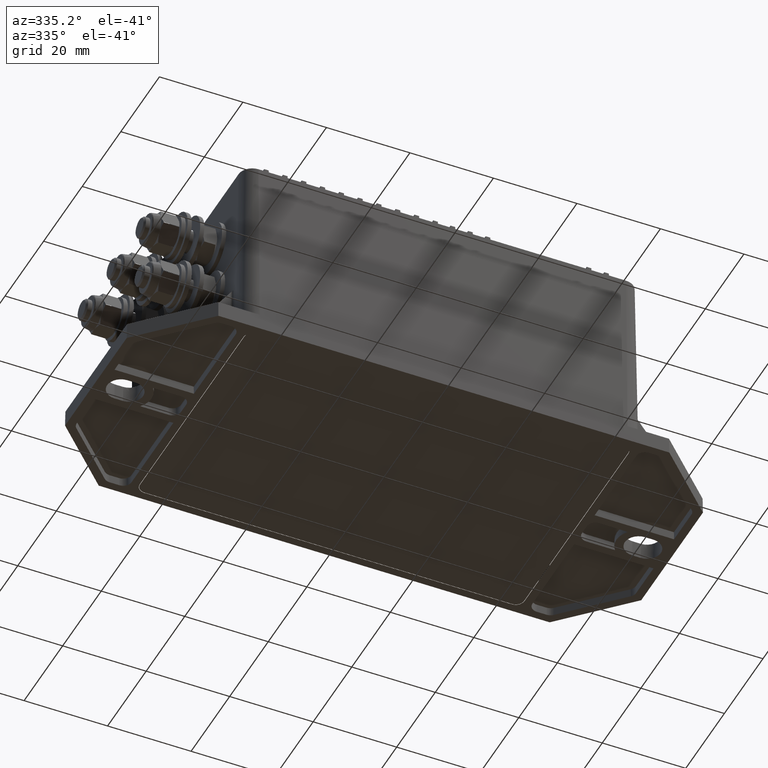
[diagram: clean part render]
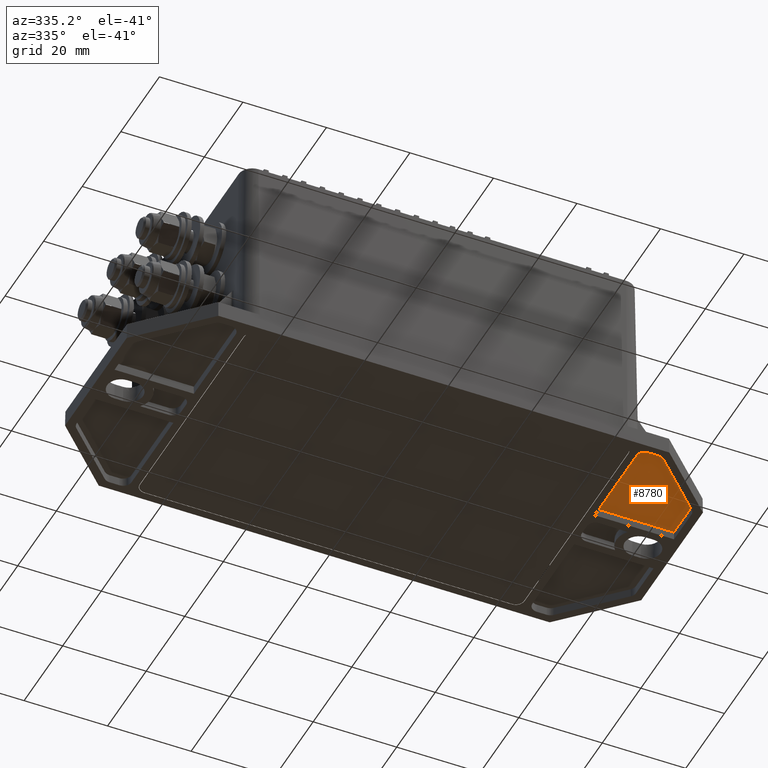
[diagram: same view with one face highlighted and labeled with its STEP entity id]
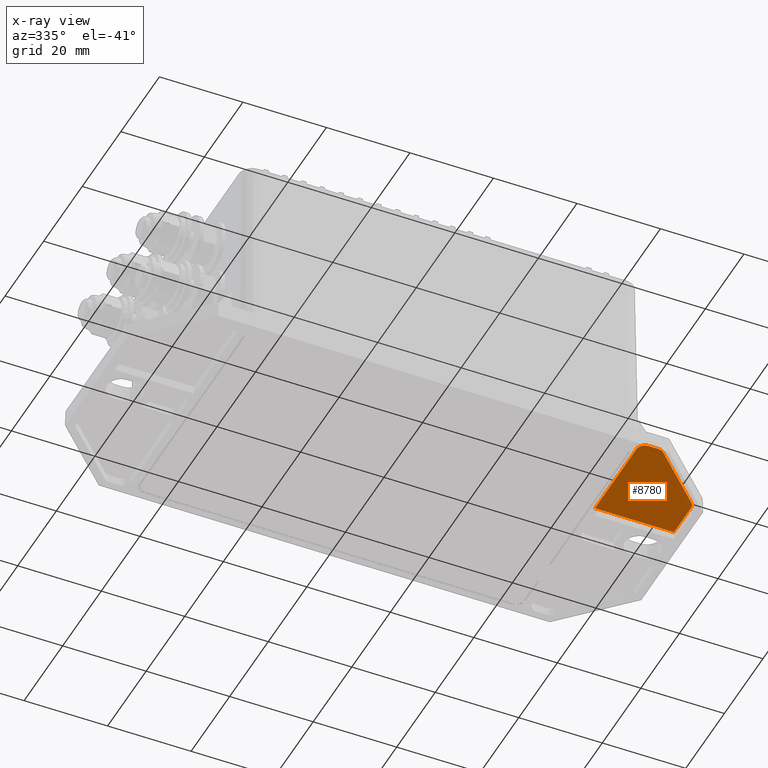
[diagram: x-ray of the same camera — body ghosted, the highlighted face saturated]
A machine part, auxiliary view. The second image highlights one B-rep face of the part: STEP entity #8780.
The next image is the same camera in x-ray: the body ghosted, the highlighted face saturated — about 0% of this face is hidden behind the body in this view.
In plain terms, the highlighted planar face has unit normal (0, 0, 1).
Its self-contained STEP definition (entity closure, byte-faithful):
#8485=CARTESIAN_POINT('',(48.034605473768657,-5.355035045656894,2.0));
#8486=VERTEX_POINT('',#8485);
#8501=CARTESIAN_POINT('',(66.96478521405578,-5.355035045656798,2.0));
#8502=VERTEX_POINT('',#8501);
#8509=CARTESIAN_POINT('',(48.034605473768657,-5.355035045656894,2.0));
#8510=DIRECTION('',(1.0,0.0,0.0));
#8511=VECTOR('',#8510,18.930179740287123);
#8512=LINE('',#8509,#8511);
#8513=EDGE_CURVE('',#8486,#8502,#8512,.T.);
#8650=CARTESIAN_POINT('',(66.964785214055823,-14.328685482036782,2.0));
#8651=VERTEX_POINT('',#8650);
#8658=CARTESIAN_POINT('',(66.964785214055823,-14.328685482036782,2.0));
#8659=DIRECTION('',(0.0,1.0,0.0));
#8660=VECTOR('',#8659,8.973650436379984);
#8661=LINE('',#8658,#8660);
#8662=EDGE_CURVE('',#8502,#8651,#8661,.F.);
#8673=CARTESIAN_POINT('',(48.034605473768778,-26.965089823742719,2.0));
#8674=VERTEX_POINT('',#8673);
#8675=CARTESIAN_POINT('',(48.034605473768778,-26.965089823742719,2.0));
#8676=DIRECTION('',(0.0,1.0,0.0));
#8677=VECTOR('',#8676,21.610054778085825);
#8678=LINE('',#8675,#8677);
#8679=EDGE_CURVE('',#8674,#8486,#8678,.T.);
#8729=CARTESIAN_POINT('',(-8.393507E-019,-1.713297E-016,2.0));
#8730=DIRECTION('',(0.0,0.0,1.0));
#8731=DIRECTION('',(1.0,0.0,0.0));
#8732=AXIS2_PLACEMENT_3D('',#8729,#8730,#8731);
#8733=PLANE('',#8732);
#8734=ORIENTED_EDGE('',*,*,#8513,.T.);
#8735=ORIENTED_EDGE('',*,*,#8662,.T.);
#8736=CARTESIAN_POINT('',(66.379087994540697,-15.742683652834426,2.0));
#8737=VERTEX_POINT('',#8736);
#8738=CARTESIAN_POINT('',(64.964480557968017,-14.32843311588968,2.0));
#8739=DIRECTION('',(3.582153E-019,-1.483776E-019,-1.0));
#8740=DIRECTION('',(0.923879532511289,-0.382683432365085,3.877294E-019));
#8741=AXIS2_PLACEMENT_3D('',#8738,#8739,#8740);
#8742=ELLIPSE('',#8741,2.000356922145393,2.0);
#8743=EDGE_CURVE('',#8651,#8737,#8742,.T.);
#8744=ORIENTED_EDGE('',*,*,#8743,.T.);
#8745=CARTESIAN_POINT('',(53.742683652834927,-28.379087994540335,2.0));
#8746=VERTEX_POINT('',#8745);
#8747=CARTESIAN_POINT('',(53.74268365283492,-28.379087994540331,2.0));
#8748=DIRECTION('',(0.707106781186544,0.707106781186551,0.0));
#8749=VECTOR('',#8748,17.870574399670662);
#8750=LINE('',#8747,#8749);
#8751=EDGE_CURVE('',#8737,#8746,#8750,.F.);
#8752=ORIENTED_EDGE('',*,*,#8751,.T.);
#8753=CARTESIAN_POINT('',(52.328685482037287,-28.964785214055478,2.0));
#8754=VERTEX_POINT('',#8753);
#8755=CARTESIAN_POINT('',(52.328433115890164,-26.964480557967665,2.0));
#8756=DIRECTION('',(6.146003E-020,-1.483776E-019,-1.0));
#8757=DIRECTION('',(0.382683432365092,-0.923879532511286,1.606028E-019));
#8758=AXIS2_PLACEMENT_3D('',#8755,#8756,#8757);
#8759=ELLIPSE('',#8758,2.000356922145393,2.0);
#8760=EDGE_CURVE('',#8746,#8754,#8759,.T.);
#8761=ORIENTED_EDGE('',*,*,#8760,.T.);
#8762=CARTESIAN_POINT('',(50.034300864081558,-28.964785214055489,2.0));
#8763=VERTEX_POINT('',#8762);
#8764=CARTESIAN_POINT('',(50.034300864081558,-28.964785214055485,2.0));
#8765=DIRECTION('',(1.0,0.0,0.0));
#8766=VECTOR('',#8765,2.294384617955728);
#8767=LINE('',#8764,#8766);
#8768=EDGE_CURVE('',#8754,#8763,#8767,.F.);
#8769=ORIENTED_EDGE('',*,*,#8768,.T.);
#8770=CARTESIAN_POINT('',(50.034910129856584,-26.964480557967676,2.0));
#8771=DIRECTION('',(2.098377E-019,2.098377E-019,-1.0));
#8772=DIRECTION('',(-0.707106781186542,-0.707106781186553,-2.967553E-019));
#8773=AXIS2_PLACEMENT_3D('',#8770,#8771,#8772);
#8774=ELLIPSE('',#8773,2.000609265782098,2.0);
#8775=EDGE_CURVE('',#8763,#8674,#8774,.T.);
#8776=ORIENTED_EDGE('',*,*,#8775,.T.);
#8777=ORIENTED_EDGE('',*,*,#8679,.T.);
#8778=EDGE_LOOP('',(#8734,#8735,#8744,#8752,#8761,#8769,#8776,#8777));
#8779=FACE_OUTER_BOUND('',#8778,.T.);
#8780=ADVANCED_FACE('',(#8779),#8733,.F.);